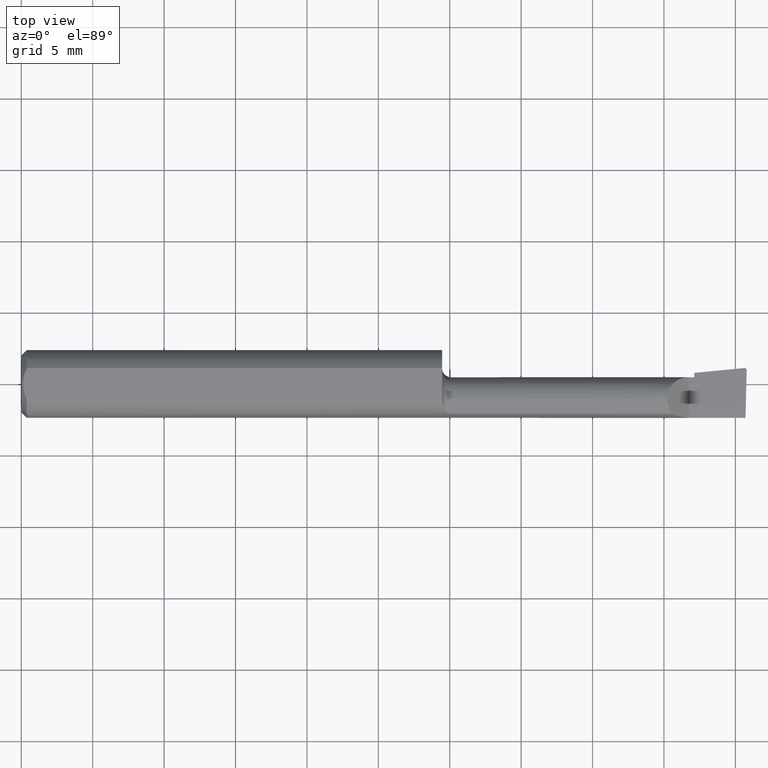
[diagram: clean part render]
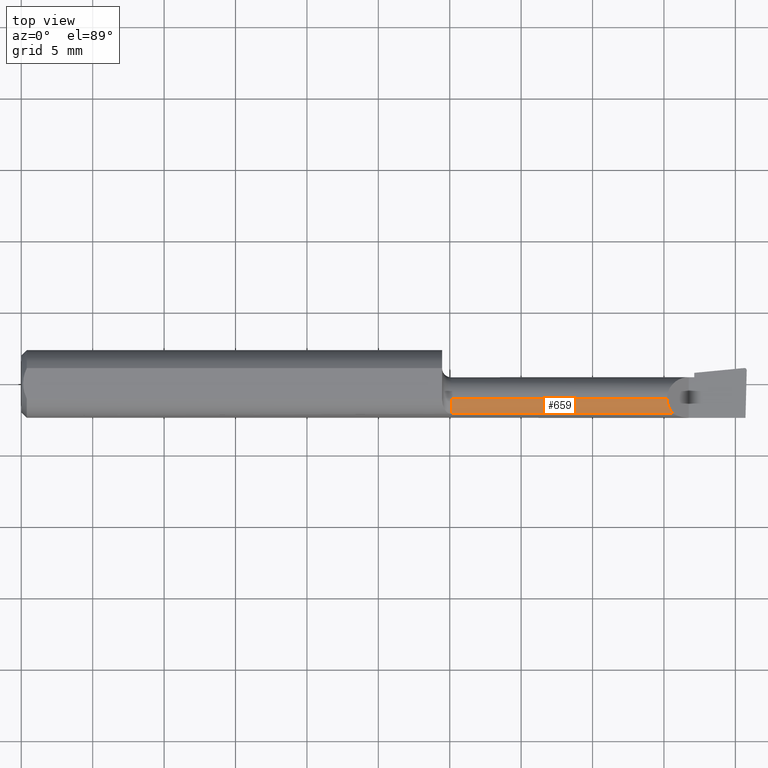
[diagram: same view with one face highlighted and labeled with its STEP entity id]
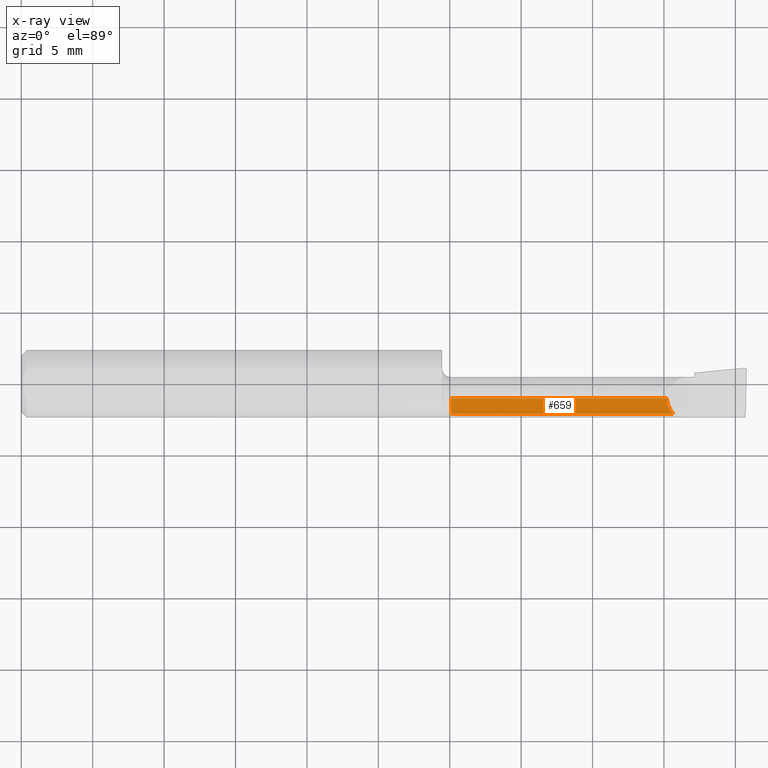
[diagram: x-ray of the same camera — body ghosted, the highlighted face saturated]
A machine part, top view. The second image highlights one B-rep face of the part: STEP entity #659.
The next image is the same camera in x-ray: the body ghosted, the highlighted face saturated — about 0% of this face is hidden behind the body in this view.
In plain terms, the highlighted cylindrical surface (edge-blend (fillet) strip) has radius 1.5215 mm, axis along (-1, -0, -0).
Its self-contained STEP definition (entity closure, byte-faithful):
#11 = EDGE_CURVE ( 'NONE', #172, #718, #533, .T. ) ;
#34 = AXIS2_PLACEMENT_3D ( 'NONE', #606, #551, #77 ) ;
#40 = ORIENTED_EDGE ( 'NONE', *, *, #11, .T. ) ;
#62 = DIRECTION ( 'NONE',  ( 1.000000000000000000, 0.0000000000000000000, 0.0000000000000000000 ) ) ;
#64 = VECTOR ( 'NONE', #485, 39.37007874015748143 ) ;
#77 = DIRECTION ( 'NONE',  ( 0.0000000000000000000, 0.0000000000000000000, 1.000000000000000000 ) ) ;
#98 = CARTESIAN_POINT ( 'NONE',  ( 1.520000000000000240, -0.08307469879518081246, 0.04312255117789283443 ) ) ;
#134 = CARTESIAN_POINT ( 'NONE',  ( 1.780099999999999349, -0.04150000000000000216, 0.05989999999999996022 ) ) ;
#143 = CARTESIAN_POINT ( 'NONE',  ( 0.0000000000000000000, -0.04150000000000000216, 0.05989999999999996022 ) ) ;
#150 = CARTESIAN_POINT ( 'NONE',  ( 1.185000000000000053, -0.04150000000000000216, 0.05989999999999991859 ) ) ;
#153 = LINE ( 'NONE', #143, #64 ) ;
#172 = VERTEX_POINT ( 'NONE', #446 ) ;
#186 = VERTEX_POINT ( 'NONE', #150 ) ;
#222 = CARTESIAN_POINT ( 'NONE',  ( 1.796877448822106649, -0.08307469879518082634, 0.04312255117789279973 ) ) ;
#290 = DIRECTION ( 'NONE',  ( -1.000000000000000000, -0.0000000000000000000, -0.0000000000000000000 ) ) ;
#300 = DIRECTION ( 'NONE',  ( 0.0000000000000000000, 0.0000000000000000000, 1.000000000000000000 ) ) ;
#305 = ORIENTED_EDGE ( 'NONE', *, *, #439, .F. ) ;
#330 = CYLINDRICAL_SURFACE ( 'NONE', #34, 0.05989999999999996022 ) ;
#338 = CARTESIAN_POINT ( 'NONE',  ( 1.796877448822106649, -0.08307469879518082634, 0.04312255117789279973 ) ) ;
#350 = VERTEX_POINT ( 'NONE', #134 ) ;
#379 = VECTOR ( 'NONE', #62, 39.37007874015748143 ) ;
#419 = EDGE_CURVE ( 'NONE', #350, #186, #153, .T. ) ;
#439 = EDGE_CURVE ( 'NONE', #172, #186, #584, .T. ) ;
#446 = CARTESIAN_POINT ( 'NONE',  ( 1.185000000000000053, -0.08307469879518036837, 0.04312255117789319525 ) ) ;
#450 = AXIS2_PLACEMENT_3D ( 'NONE', #483, #290, #300 ) ;
#482 = FACE_OUTER_BOUND ( 'NONE', #499, .T. ) ;
#483 = CARTESIAN_POINT ( 'NONE',  ( 1.185000000000000053, -0.04150000000000000216, 0.0000000000000000000 ) ) ;
#485 = DIRECTION ( 'NONE',  ( -1.000000000000000000, -0.0000000000000000000, -0.0000000000000000000 ) ) ;
#499 = EDGE_LOOP ( 'NONE', ( #661, #558, #305, #40 ) ) ;
#533 = LINE ( 'NONE', #98, #379 ) ;
#551 = DIRECTION ( 'NONE',  ( -1.000000000000000000, -0.0000000000000000000, -0.0000000000000000000 ) ) ;
#558 = ORIENTED_EDGE ( 'NONE', *, *, #419, .T. ) ;
#584 = CIRCLE ( 'NONE', #450, 0.05989999999999991859 ) ;
#585 = CARTESIAN_POINT ( 'NONE',  ( 1.785977184218891400, -0.07176861043311237587, 0.05402281578110738197 ) ) ;
#588 = CARTESIAN_POINT ( 'NONE',  ( 1.780099999999999127, -0.05720488466914008113, 0.05989999999999996022 ) ) ;
#606 = CARTESIAN_POINT ( 'NONE',  ( 0.0000000000000000000, -0.04150000000000000216, 0.0000000000000000000 ) ) ;
#642 = EDGE_CURVE ( 'NONE', #718, #350, #663, .T. ) ;
#659 = ADVANCED_FACE ( 'NONE', ( #482 ), #330, .T. ) ;
#661 = ORIENTED_EDGE ( 'NONE', *, *, #642, .T. ) ;
#663 =( BOUNDED_CURVE ( )  B_SPLINE_CURVE ( 3, ( #338, #585, #588, #717 ),
 .UNSPECIFIED., .F., .T. ) 
 B_SPLINE_CURVE_WITH_KNOTS ( ( 4, 4 ),
 ( 5.516060229395656656, 6.283185307179586232 ),
 .UNSPECIFIED. ) 
 CURVE ( )  GEOMETRIC_REPRESENTATION_ITEM ( )  RATIONAL_B_SPLINE_CURVE ( ( 1.000000000000000000, 0.9515582177473687064, 0.9515582177473687064, 1.000000000000000000 ) ) 
 REPRESENTATION_ITEM ( '' )  );
#717 = CARTESIAN_POINT ( 'NONE',  ( 1.780099999999999349, -0.04150000000000000216, 0.05989999999999996022 ) ) ;
#718 = VERTEX_POINT ( 'NONE', #222 ) ;